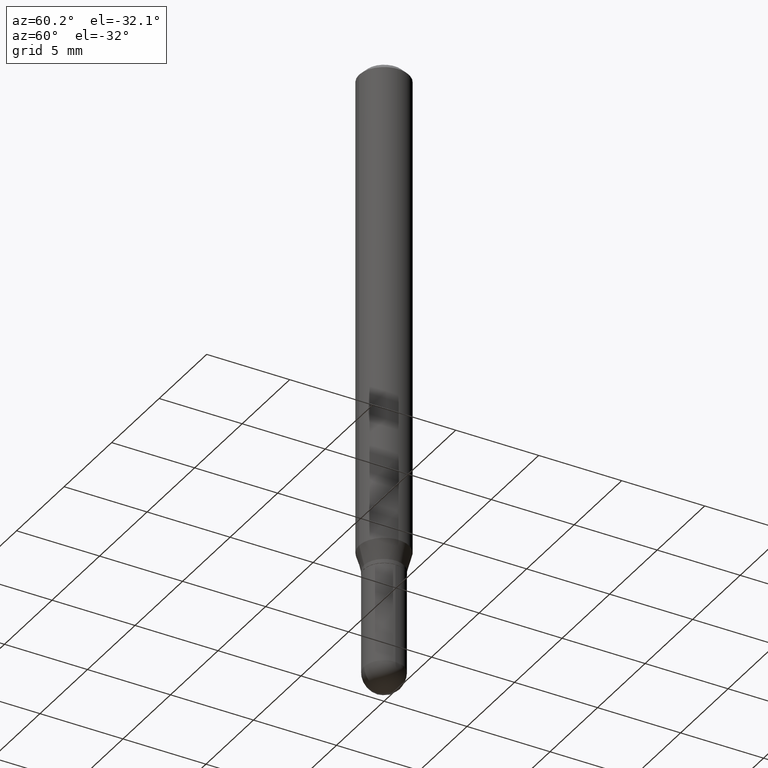
[diagram: clean part render]
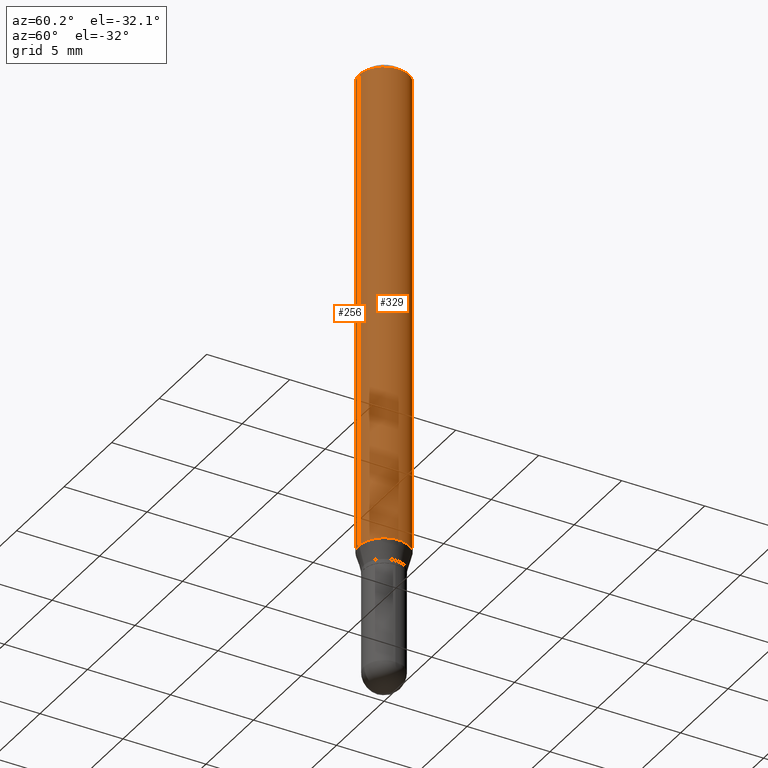
[diagram: same view with one multi-face feature highlighted, each face labeled with its STEP entity id]
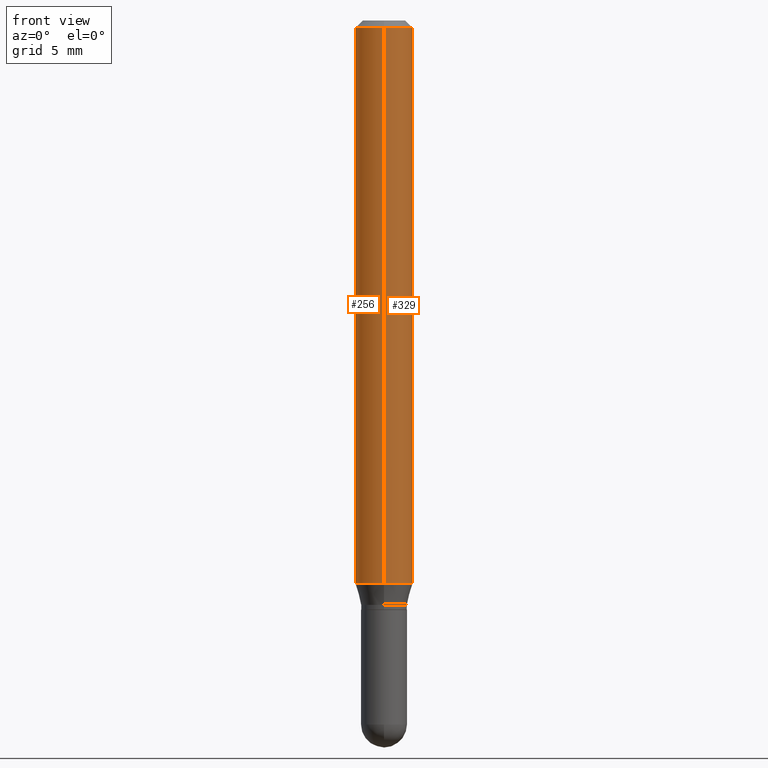
[diagram: same view with one multi-face feature highlighted, each face labeled with its STEP entity id]
A machine part, auxiliary view. The highlighted faces form ONE feature: a constant-radius fillet chain: 2 tangent blend faces with common blend radius 1.4999 mm. The faces share edges in the B-rep.
A second angle (front view) of the same feature is appended — it is thin or edge-on in the first view.
Their STEP definitions:
[1] entity #329 (Cylinder):
#6 = LINE ( 'NONE', #241, #417 ) ;
#8 = ORIENTED_EDGE ( 'NONE', *, *, #473, .T. ) ;
#112 = VERTEX_POINT ( 'NONE', #497 ) ;
#125 = DIRECTION ( 'NONE',  ( -6.982962677686265922E-15, -1.000000000000000000, 3.491568167093598178E-15 ) ) ;
#138 = CYLINDRICAL_SURFACE ( 'NONE', #467, 0.05904999999999999832 ) ;
#151 = CARTESIAN_POINT ( 'NONE',  ( 4.195754854663390985E-16, 0.05904999999999999832, -2.061771002668769780E-16 ) ) ;
#152 = ORIENTED_EDGE ( 'NONE', *, *, #350, .T. ) ;
#192 = VERTEX_POINT ( 'NONE', #339 ) ;
#195 = CIRCLE ( 'NONE', #200, 0.05904999999999999832 ) ;
#200 = AXIS2_PLACEMENT_3D ( 'NONE', #216, #254, #251 ) ;
#216 = CARTESIAN_POINT ( 'NONE',  ( 2.833156497351298695E-29, -4.045197502134097515E-15, -1.158561800470687464 ) ) ;
#217 = DIRECTION ( 'NONE',  ( -6.982962677686265922E-15, -1.000000000000000000, 3.505890868245046092E-15 ) ) ;
#232 = DIRECTION ( 'NONE',  ( -2.445408174341908367E-29, 3.491568167093598573E-15, 1.000000000000000000 ) ) ;
#241 = CARTESIAN_POINT ( 'NONE',  ( -4.123439461173739834E-16, -0.05904999999999999832, 2.061771002668769780E-16 ) ) ;
#251 = DIRECTION ( 'NONE',  ( -6.982962677686265922E-15, -1.000000000000000000, 4.626330217890369336E-15 ) ) ;
#254 = DIRECTION ( 'NONE',  ( -2.445408174341908367E-29, 3.491568167093598573E-15, 1.000000000000000000 ) ) ;
#274 = EDGE_CURVE ( 'NONE', #192, #112, #6, .T. ) ;
#308 = VERTEX_POINT ( 'NONE', #478 ) ;
#313 = VECTOR ( 'NONE', #232, 39.37007874015748143 ) ;
#326 = FACE_OUTER_BOUND ( 'NONE', #418, .T. ) ;
#329 = ADVANCED_FACE ( 'NONE', ( #326 ), #138, .T. ) ;
#339 = CARTESIAN_POINT ( 'NONE',  ( -4.123439461173456337E-16, -0.05905000000000405758, -1.158561800470687464 ) ) ;
#350 = EDGE_CURVE ( 'NONE', #192, #308, #195, .T. ) ;
#364 = ORIENTED_EDGE ( 'NONE', *, *, #274, .F. ) ;
#366 = ORIENTED_EDGE ( 'NONE', *, *, #425, .F. ) ;
#371 = CARTESIAN_POINT ( 'NONE',  ( 4.195754854663675961E-16, 0.05904999999999994281, -0.01500000000000023016 ) ) ;
#377 = DIRECTION ( 'NONE',  ( -2.445408174341908367E-29, 3.491568167093598573E-15, 1.000000000000000000 ) ) ;
#388 = VERTEX_POINT ( 'NONE', #371 ) ;
#390 = CIRCLE ( 'NONE', #498, 0.05904999999999999832 ) ;
#399 = DIRECTION ( 'NONE',  ( -2.445408174341908367E-29, 3.491568167093598573E-15, 1.000000000000000000 ) ) ;
#404 = CARTESIAN_POINT ( 'NONE',  ( 3.668112261512868349E-31, -5.237352250640406068E-17, -0.01500000000000002373 ) ) ;
#417 = VECTOR ( 'NONE', #465, 39.37007874015748143 ) ;
#418 = EDGE_LOOP ( 'NONE', ( #152, #8, #366, #364 ) ) ;
#425 = EDGE_CURVE ( 'NONE', #112, #388, #390, .T. ) ;
#457 = LINE ( 'NONE', #151, #313 ) ;
#465 = DIRECTION ( 'NONE',  ( -2.445408174341908367E-29, 3.491568167093598573E-15, 1.000000000000000000 ) ) ;
#467 = AXIS2_PLACEMENT_3D ( 'NONE', #490, #399, #125 ) ;
#473 = EDGE_CURVE ( 'NONE', #308, #388, #457, .T. ) ;
#478 = CARTESIAN_POINT ( 'NONE',  ( 4.195754854663673496E-16, 0.05904999999999594601, -1.158561800470687686 ) ) ;
#490 = CARTESIAN_POINT ( 'NONE',  ( 0.000000000000000000, 0.000000000000000000, 0.000000000000000000 ) ) ;
#497 = CARTESIAN_POINT ( 'NONE',  ( -4.123439461173736383E-16, -0.05905000000000005383, -0.01499999999999981730 ) ) ;
#498 = AXIS2_PLACEMENT_3D ( 'NONE', #404, #377, #217 ) ;
[2] entity #256 (Cylinder):
#6 = LINE ( 'NONE', #241, #417 ) ;
#17 = AXIS2_PLACEMENT_3D ( 'NONE', #322, #480, #55 ) ;
#41 = AXIS2_PLACEMENT_3D ( 'NONE', #331, #443, #101 ) ;
#50 = EDGE_LOOP ( 'NONE', ( #246, #398, #65, #479 ) ) ;
#55 = DIRECTION ( 'NONE',  ( -6.982962677686265922E-15, -1.000000000000000000, 3.505890868245046092E-15 ) ) ;
#65 = ORIENTED_EDGE ( 'NONE', *, *, #274, .T. ) ;
#75 = CIRCLE ( 'NONE', #41, 0.05904999999999999832 ) ;
#85 = DIRECTION ( 'NONE',  ( -6.982962677686265922E-15, -1.000000000000000000, 3.491568167093598178E-15 ) ) ;
#101 = DIRECTION ( 'NONE',  ( -6.982962677686265922E-15, -1.000000000000000000, 4.626330217890369336E-15 ) ) ;
#112 = VERTEX_POINT ( 'NONE', #497 ) ;
#122 = CARTESIAN_POINT ( 'NONE',  ( 0.000000000000000000, 0.000000000000000000, 0.000000000000000000 ) ) ;
#151 = CARTESIAN_POINT ( 'NONE',  ( 4.195754854663390985E-16, 0.05904999999999999832, -2.061771002668769780E-16 ) ) ;
#192 = VERTEX_POINT ( 'NONE', #339 ) ;
#199 = DIRECTION ( 'NONE',  ( -2.445408174341908367E-29, 3.491568167093598573E-15, 1.000000000000000000 ) ) ;
#219 = CIRCLE ( 'NONE', #17, 0.05904999999999999832 ) ;
#232 = DIRECTION ( 'NONE',  ( -2.445408174341908367E-29, 3.491568167093598573E-15, 1.000000000000000000 ) ) ;
#236 = EDGE_CURVE ( 'NONE', #308, #192, #75, .T. ) ;
#241 = CARTESIAN_POINT ( 'NONE',  ( -4.123439461173739834E-16, -0.05904999999999999832, 2.061771002668769780E-16 ) ) ;
#242 = FACE_OUTER_BOUND ( 'NONE', #50, .T. ) ;
#246 = ORIENTED_EDGE ( 'NONE', *, *, #473, .F. ) ;
#256 = ADVANCED_FACE ( 'NONE', ( #242 ), #392, .T. ) ;
#274 = EDGE_CURVE ( 'NONE', #192, #112, #6, .T. ) ;
#308 = VERTEX_POINT ( 'NONE', #478 ) ;
#313 = VECTOR ( 'NONE', #232, 39.37007874015748143 ) ;
#322 = CARTESIAN_POINT ( 'NONE',  ( 3.668112261512868349E-31, -5.237352250640406068E-17, -0.01500000000000002373 ) ) ;
#331 = CARTESIAN_POINT ( 'NONE',  ( 2.833156497351298695E-29, -4.045197502134097515E-15, -1.158561800470687464 ) ) ;
#339 = CARTESIAN_POINT ( 'NONE',  ( -4.123439461173456337E-16, -0.05905000000000405758, -1.158561800470687464 ) ) ;
#368 = EDGE_CURVE ( 'NONE', #388, #112, #219, .T. ) ;
#371 = CARTESIAN_POINT ( 'NONE',  ( 4.195754854663675961E-16, 0.05904999999999994281, -0.01500000000000023016 ) ) ;
#388 = VERTEX_POINT ( 'NONE', #371 ) ;
#392 = CYLINDRICAL_SURFACE ( 'NONE', #476, 0.05904999999999999832 ) ;
#398 = ORIENTED_EDGE ( 'NONE', *, *, #236, .T. ) ;
#417 = VECTOR ( 'NONE', #465, 39.37007874015748143 ) ;
#443 = DIRECTION ( 'NONE',  ( -2.445408174341908367E-29, 3.491568167093598573E-15, 1.000000000000000000 ) ) ;
#457 = LINE ( 'NONE', #151, #313 ) ;
#465 = DIRECTION ( 'NONE',  ( -2.445408174341908367E-29, 3.491568167093598573E-15, 1.000000000000000000 ) ) ;
#473 = EDGE_CURVE ( 'NONE', #308, #388, #457, .T. ) ;
#476 = AXIS2_PLACEMENT_3D ( 'NONE', #122, #199, #85 ) ;
#478 = CARTESIAN_POINT ( 'NONE',  ( 4.195754854663673496E-16, 0.05904999999999594601, -1.158561800470687686 ) ) ;
#479 = ORIENTED_EDGE ( 'NONE', *, *, #368, .F. ) ;
#480 = DIRECTION ( 'NONE',  ( -2.445408174341908367E-29, 3.491568167093598573E-15, 1.000000000000000000 ) ) ;
#497 = CARTESIAN_POINT ( 'NONE',  ( -4.123439461173736383E-16, -0.05905000000000005383, -0.01499999999999981730 ) ) ;